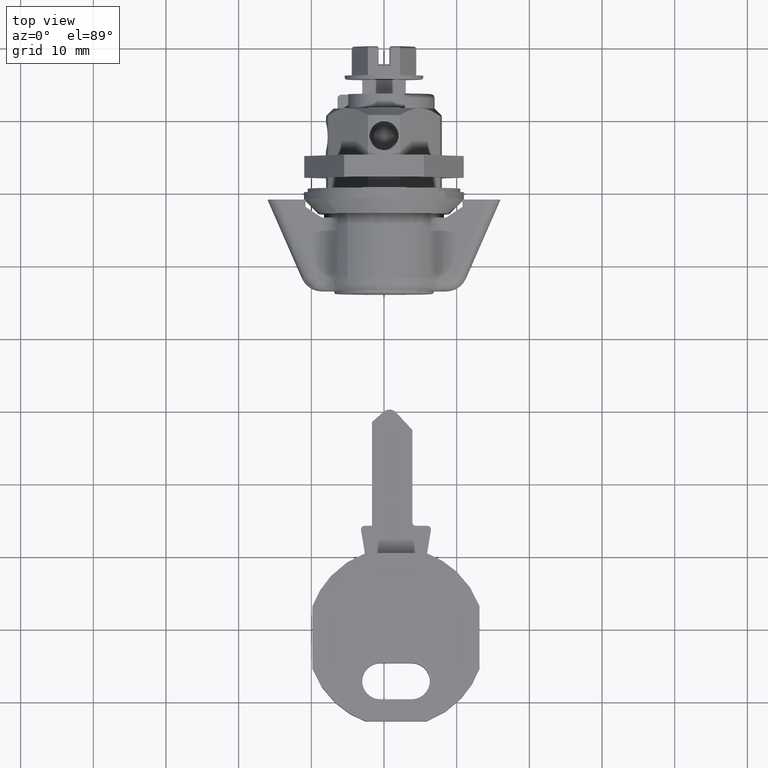
[diagram: clean part render]
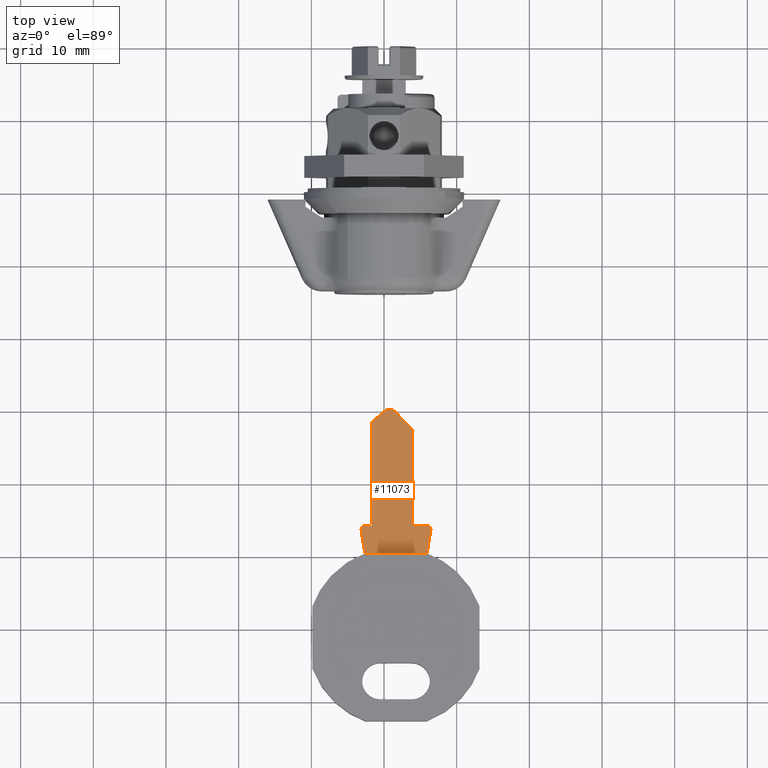
[diagram: same view with one face highlighted and labeled with its STEP entity id]
A machine part, top view. The second image highlights one B-rep face of the part: STEP entity #11073.
In plain terms, the highlighted face is a freeform B-spline surface patch.
Its self-contained STEP definition (entity closure, byte-faithful):
#10940=CARTESIAN_POINT('',(-50.644985142924298,-6.942889243707666,0.900000000000000));
#10941=CARTESIAN_POINT('',(-28.866970228935141,-6.942889243707666,0.900000000000000));
#10942=CARTESIAN_POINT('',(-50.644985142924298,3.642902726215145,0.900000000000000));
#10943=CARTESIAN_POINT('',(-28.866970228935141,3.642902726215145,0.900000000000000));
#10944=B_SPLINE_SURFACE_WITH_KNOTS('',1,1,((#10940,#10942),(#10941,#10943)),.UNSPECIFIED.,.F.,.F.,.U.,(2,2),(2,2),(0.0,21.778014913989161),(0.0,10.585791969922809),.UNSPECIFIED.);
#10945=CARTESIAN_POINT('',(-46.436174009033998,3.155717474792780,0.900000000000012));
#10946=VERTEX_POINT('',#10945);
#10947=CARTESIAN_POINT('',(-49.655976283940703,2.632499605120625,0.900000000000012));
#10948=VERTEX_POINT('',#10947);
#10949=CARTESIAN_POINT('',(-46.436174009033998,3.155717474792780,0.900000000000012));
#10950=CARTESIAN_POINT('',(-49.655976283940703,2.632499605120625,0.900000000000012));
#10951=QUASI_UNIFORM_CURVE('',1,(#10949,#10950),.UNSPECIFIED.,.F.,.U.);
#10952=EDGE_CURVE('',#10946,#10948,#10951,.T.);
#10953=ORIENTED_EDGE('',*,*,#10952,.T.);
#10954=CARTESIAN_POINT('',(-49.655976318021303,2.570485381688505,0.900000000000012));
#10955=VERTEX_POINT('',#10954);
#10956=CARTESIAN_POINT('',(-49.655976283940703,2.632499605120625,0.900000000000012));
#10957=CARTESIAN_POINT('',(-49.655976318021303,2.570485381688505,0.900000000000012));
#10958=QUASI_UNIFORM_CURVE('',1,(#10956,#10957),.UNSPECIFIED.,.F.,.U.);
#10959=EDGE_CURVE('',#10948,#10955,#10958,.T.);
#10960=ORIENTED_EDGE('',*,*,#10959,.T.);
#10961=CARTESIAN_POINT('',(-49.655976283940703,-5.870486527299050,0.900000000000012));
#10962=VERTEX_POINT('',#10961);
#10963=CARTESIAN_POINT('',(-49.655976318021303,2.570485381688505,0.900000000000012));
#10964=CARTESIAN_POINT('',(-49.655976283940703,-5.870486527299050,0.900000000000012));
#10965=QUASI_UNIFORM_CURVE('',1,(#10963,#10964),.UNSPECIFIED.,.F.,.U.);
#10966=EDGE_CURVE('',#10955,#10962,#10965,.T.);
#10967=ORIENTED_EDGE('',*,*,#10966,.T.);
#10968=CARTESIAN_POINT('',(-49.655976283940703,-5.932500750779689,0.900000000000012));
#10969=VERTEX_POINT('',#10968);
#10970=CARTESIAN_POINT('',(-49.655976283940703,-5.870486527299050,0.900000000000012));
#10971=CARTESIAN_POINT('',(-49.655976283940703,-5.932500750779689,0.900000000000012));
#10972=QUASI_UNIFORM_CURVE('',1,(#10970,#10971),.UNSPECIFIED.,.F.,.U.);
#10973=EDGE_CURVE('',#10962,#10969,#10972,.T.);
#10974=ORIENTED_EDGE('',*,*,#10973,.T.);
#10975=CARTESIAN_POINT('',(-46.436174009033998,-6.455718620451851,0.900000000000012));
#10976=VERTEX_POINT('',#10975);
#10977=CARTESIAN_POINT('',(-49.655976283940703,-5.932500750779689,0.900000000000012));
#10978=CARTESIAN_POINT('',(-46.436174009033998,-6.455718620451851,0.900000000000012));
#10979=QUASI_UNIFORM_CURVE('',1,(#10977,#10978),.UNSPECIFIED.,.F.,.U.);
#10980=EDGE_CURVE('',#10969,#10976,#10979,.T.);
#10981=ORIENTED_EDGE('',*,*,#10980,.T.);
#10982=CARTESIAN_POINT('',(-45.855975946787900,-5.962192229698641,0.900000000000012));
#10983=VERTEX_POINT('',#10982);
#10984=CARTESIAN_POINT('',(-46.436174009033998,-6.455718620451851,0.900000000000012));
#10985=CARTESIAN_POINT('',(-46.373854554527227,-6.465886361616715,0.900000000000012));
#10986=CARTESIAN_POINT('',(-46.236152128839471,-6.461950100610674,0.900000000000012));
#10987=CARTESIAN_POINT('',(-46.043445067234948,-6.372700469139265,0.900000000000011));
#10988=CARTESIAN_POINT('',(-45.894169390292369,-6.196562446013301,0.900000000000013));
#10989=CARTESIAN_POINT('',(-45.855808651114209,-6.043412398974518,0.900000000000010));
#10990=CARTESIAN_POINT('',(-45.855975946787900,-5.962192229698641,0.900000000000012));
#10991=B_SPLINE_CURVE_WITH_KNOTS('',3,(#10984,#10985,#10986,#10987,#10988,#10989,#10990),.UNSPECIFIED.,.F.,.U.,(4,1,1,1,4),(0.000000198469697,0.189448220745174,0.405964352362045,0.622472982100685,0.866049721180781),.UNSPECIFIED.);
#10992=EDGE_CURVE('',#10976,#10983,#10991,.T.);
#10993=ORIENTED_EDGE('',*,*,#10992,.T.);
#10994=CARTESIAN_POINT('',(-45.855975946787900,-4.400000679698850,0.900000000000012));
#10995=VERTEX_POINT('',#10994);
#10996=CARTESIAN_POINT('',(-45.855975946787900,-5.962192229698641,0.900000000000012));
#10997=CARTESIAN_POINT('',(-45.855975946787900,-4.400000679698850,0.900000000000012));
#10998=QUASI_UNIFORM_CURVE('',1,(#10996,#10997),.UNSPECIFIED.,.F.,.U.);
#10999=EDGE_CURVE('',#10983,#10995,#10998,.T.);
#11000=ORIENTED_EDGE('',*,*,#10999,.T.);
#11001=CARTESIAN_POINT('',(-45.355975946787900,-3.900000679698850,0.900000000000012));
#11002=VERTEX_POINT('',#11001);
#11003=CARTESIAN_POINT('',(-45.355975946787900,-3.900000679698850,0.900000000000012));
#11004=CARTESIAN_POINT('',(-45.413245560056140,-3.899969378274858,0.900000000000012));
#11005=CARTESIAN_POINT('',(-45.535954498001523,-3.921286402467290,0.900000000000012));
#11006=CARTESIAN_POINT('',(-45.693342734215058,-4.015578532199434,0.900000000000012));
#11007=CARTESIAN_POINT('',(-45.821038114318839,-4.179260879994899,0.900000000000012));
#11008=CARTESIAN_POINT('',(-45.856141079636508,-4.318148736912395,0.900000000000012));
#11009=CARTESIAN_POINT('',(-45.855975946787900,-4.400000679698850,0.900000000000012));
#11010=B_SPLINE_CURVE_WITH_KNOTS('',3,(#11003,#11004,#11005,#11006,#11007,#11008,#11009),.UNSPECIFIED.,.F.,.U.,(4,1,1,1,4),(0.000000153221455,0.171822546627838,0.368193639505729,0.540007142532224,0.785476941660328),.UNSPECIFIED.);
#11011=EDGE_CURVE('',#11002,#10995,#11010,.T.);
#11012=ORIENTED_EDGE('',*,*,#11011,.F.);
#11013=CARTESIAN_POINT('',(-32.655975319828350,-3.900000679698850,0.900000000000012));
#11014=VERTEX_POINT('',#11013);
#11015=CARTESIAN_POINT('',(-45.355975946787900,-3.900000679698850,0.900000000000012));
#11016=CARTESIAN_POINT('',(-32.655975319828350,-3.900000679698850,0.900000000000012));
#11017=QUASI_UNIFORM_CURVE('',1,(#11015,#11016),.UNSPECIFIED.,.F.,.U.);
#11018=EDGE_CURVE('',#11002,#11014,#11017,.T.);
#11019=ORIENTED_EDGE('',*,*,#11018,.T.);
#11020=CARTESIAN_POINT('',(-30.238431852174699,-1.650000572829130,0.900000000000012));
#11021=VERTEX_POINT('',#11020);
#11022=CARTESIAN_POINT('',(-32.655975319828350,-3.900000679698850,0.900000000000012));
#11023=CARTESIAN_POINT('',(-30.238431852174699,-1.650000572829130,0.900000000000012));
#11024=QUASI_UNIFORM_CURVE('',1,(#11022,#11023),.UNSPECIFIED.,.F.,.U.);
#11025=EDGE_CURVE('',#11014,#11021,#11024,.T.);
#11026=ORIENTED_EDGE('',*,*,#11025,.T.);
#11027=CARTESIAN_POINT('',(-30.146199211474251,0.010921066252383,0.900000000000012));
#11028=VERTEX_POINT('',#11027);
#11029=CARTESIAN_POINT('',(-30.238431852174699,-1.650000572829130,0.900000000000012));
#11030=CARTESIAN_POINT('',(-30.133219791106150,-1.552256016649695,0.900000000000013));
#11031=CARTESIAN_POINT('',(-30.005295210340211,-1.380727323360969,0.900000000000011));
#11032=CARTESIAN_POINT('',(-29.881011013667450,-1.068313498197483,0.900000000000015));
#11033=CARTESIAN_POINT('',(-29.837961565138450,-0.761279960973607,0.900000000000006));
#11034=CARTESIAN_POINT('',(-29.902663055045409,-0.360239983316081,0.900000000000018));
#11035=CARTESIAN_POINT('',(-30.039906604260381,-0.112349254953650,0.900000000000004));
#11036=CARTESIAN_POINT('',(-30.146199211474251,0.010921066252383,0.900000000000012));
#11037=B_SPLINE_CURVE_WITH_KNOTS('',3,(#11029,#11030,#11031,#11032,#11033,#11034,#11035,#11036),.UNSPECIFIED.,.F.,.U.,(4,1,1,1,1,4),(0.000000176111886,0.430775195089771,0.631805031743456,1.005132176122856,1.349760480437191,1.837973863224173),.UNSPECIFIED.);
#11038=EDGE_CURVE('',#11021,#11028,#11037,.T.);
#11039=ORIENTED_EDGE('',*,*,#11038,.T.);
#11040=CARTESIAN_POINT('',(-31.555975267574301,1.649999583912065,0.900000000000012));
#11041=VERTEX_POINT('',#11040);
#11042=CARTESIAN_POINT('',(-30.146199211474251,0.010921066252383,0.900000000000012));
#11043=CARTESIAN_POINT('',(-31.555975267574301,1.649999583912065,0.900000000000012));
#11044=QUASI_UNIFORM_CURVE('',1,(#11042,#11043),.UNSPECIFIED.,.F.,.U.);
#11045=EDGE_CURVE('',#11028,#11041,#11044,.T.);
#11046=ORIENTED_EDGE('',*,*,#11045,.T.);
#11047=CARTESIAN_POINT('',(-45.855975946787900,1.649999583912065,0.900000000000012));
#11048=VERTEX_POINT('',#11047);
#11049=CARTESIAN_POINT('',(-31.555975267574301,1.649999583912065,0.900000000000012));
#11050=CARTESIAN_POINT('',(-45.855975946787900,1.649999583912065,0.900000000000012));
#11051=QUASI_UNIFORM_CURVE('',1,(#11049,#11050),.UNSPECIFIED.,.F.,.U.);
#11052=EDGE_CURVE('',#11041,#11048,#11051,.T.);
#11053=ORIENTED_EDGE('',*,*,#11052,.T.);
#11054=CARTESIAN_POINT('',(-45.855975946787900,2.662191084039760,0.900000000000012));
#11055=VERTEX_POINT('',#11054);
#11056=CARTESIAN_POINT('',(-45.855975946787900,1.649999583912065,0.900000000000012));
#11057=CARTESIAN_POINT('',(-45.855975946787900,2.662191084039760,0.900000000000012));
#11058=QUASI_UNIFORM_CURVE('',1,(#11056,#11057),.UNSPECIFIED.,.F.,.U.);
#11059=EDGE_CURVE('',#11048,#11055,#11058,.T.);
#11060=ORIENTED_EDGE('',*,*,#11059,.T.);
#11061=CARTESIAN_POINT('',(-45.855975946787900,2.662191084039760,0.900000000000012));
#11062=CARTESIAN_POINT('',(-45.855928311319687,2.725331856760334,0.900000000000012));
#11063=CARTESIAN_POINT('',(-45.881918542298621,2.860626828481428,0.900000000000012));
#11064=CARTESIAN_POINT('',(-46.000906609088013,3.036510964651566,0.900000000000013));
#11065=CARTESIAN_POINT('',(-46.198711622735843,3.155629988817836,0.900000000000009));
#11066=CARTESIAN_POINT('',(-46.356034398942889,3.168895869844214,0.900000000000015));
#11067=CARTESIAN_POINT('',(-46.436174009033998,3.155717474792780,0.900000000000012));
#11068=B_SPLINE_CURVE_WITH_KNOTS('',3,(#11061,#11062,#11063,#11064,#11065,#11066,#11067),.UNSPECIFIED.,.F.,.U.,(4,1,1,1,4),(0.000000198470157,0.189448220745364,0.405964352362058,0.622472982100602,0.866049721180533),.UNSPECIFIED.);
#11069=EDGE_CURVE('',#11055,#10946,#11068,.T.);
#11070=ORIENTED_EDGE('',*,*,#11069,.T.);
#11071=EDGE_LOOP('',(#10953,#10960,#10967,#10974,#10981,#10993,#11000,#11012,#11019,#11026,#11039,#11046,#11053,#11060,#11070));
#11072=FACE_OUTER_BOUND('',#11071,.T.);
#11073=ADVANCED_FACE('',(#11072),#10944,.T.);